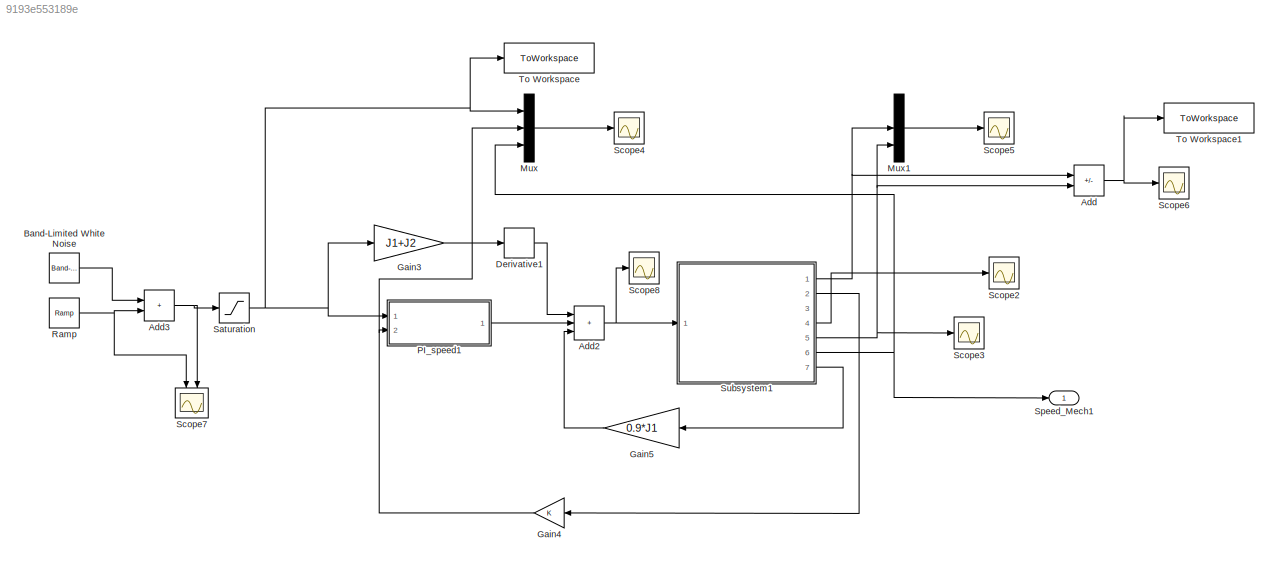
MODEL slx_9193e553189e
KIND model
CONFIG AbsTol = auto
CONFIG EnableMultiTasking = off
CONFIG FixedStep = Ts_10k
CONFIG MaxStep = auto
CONFIG MinStep = auto
CONFIG RelTol = 1e-3
CONFIG SampleTimeConstraint = Unconstrained
CONFIG SolverName = FixedStepAuto
CONFIG StartTime = 0.0
CONFIG StopTime = 10
BLOCK [Sum] Add
  IconShape = rectangular
  Inputs = +-
  Ports = [2, 1]
BLOCK [Sum] Add2
  IconShape = rectangular
  Inputs = +++
  Ports = [3, 1]
BLOCK [Sum] Add3
  IconShape = rectangular
  Ports = [2, 1]
BLOCK [Reference] Band-Limited White Noise  REF=simulink/Sources/Band-Limited
White Noise
  Commented = on
  Ports = [0, 1]
  SourceBlock = simulink/Sources/Band-Limited\nWhite Noise
  SourceProductBaseCode = SL
  SourceType = Band-Limited White Noise.
BLOCK [Derivative] Derivative1
BLOCK [Gain] Gain3
  Gain = J1+J2
BLOCK [Gain] Gain4
BLOCK [Gain] Gain5
  Gain = 0.9*J1
BLOCK [Mux] Mux
  DisplayOption = bar
  Inputs = 3
  Ports = [3, 1]
BLOCK [Mux] Mux1
  DisplayOption = bar
  Inputs = 3
  Ports = [3, 1]
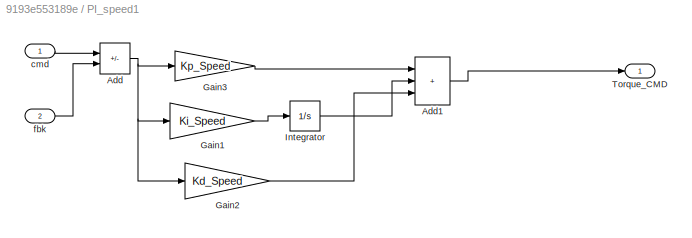
BLOCK [SubSystem] PI_speed1
  Ports = [2, 1]
  RequestExecContextInheritance = off
BLOCK [Sum] PI_speed1/Add
  IconShape = rectangular
  Inputs = +-
  Ports = [2, 1]
BLOCK [Sum] PI_speed1/Add1
  IconShape = rectangular
  Inputs = +++
  Ports = [3, 1]
BLOCK [Gain] PI_speed1/Gain1
  Gain = Ki_Speed
BLOCK [Gain] PI_speed1/Gain2
  Gain = Kd_Speed
BLOCK [Gain] PI_speed1/Gain3
  Gain = Kp_Speed
BLOCK [Integrator] PI_speed1/Integrator
  Ports = [1, 1]
BLOCK [Outport] PI_speed1/Torque_CMD
BLOCK [Inport] PI_speed1/cmd
BLOCK [Inport] PI_speed1/fbk
  Port = 2
BLOCK [Reference] Ramp  REF=simulink/Sources/Ramp
  Ports = [0, 1]
  SourceBlock = simulink/Sources/Ramp
  SourceProductBaseCode = SL
  SourceType = Ramp
BLOCK [Saturate] Saturation
  LowerLimit = -55
  UpperLimit = 41.667
BLOCK [Scope] Scope2
  Floating = off
  NumInputPorts = 1
  Ports = [1]
  ScopeSpecificationString = Simulink.scopes.TimeScopeBlockCfg('CurrentConfiguration', extmgr.ConfigurationSet(extmgr.Configuration('Core','General UI',true),extmgr.Configuration('Core','Source UI',true),extmgr.Configuration('Sources','WiredSimulink',true,'DataLoggingVariableName','ScopeData1'),extmgr.Configuration('Visuals','Time Domain',true,'SerializedDisplays',{struct('MinYLimReal','-25.9788','MaxYLimReal','233.80924','YL...<+1404ch>
BLOCK [Scope] Scope3
  Floating = off
  NumInputPorts = 1
  Ports = [1]
  ScopeSpecificationString = Simulink.scopes.TimeScopeBlockCfg('CurrentConfiguration', extmgr.ConfigurationSet(extmgr.Configuration('Core','General UI',true),extmgr.Configuration('Core','Source UI',true),extmgr.Configuration('Sources','WiredSimulink',true,'DataLoggingVariableName','ScopeData2'),extmgr.Configuration('Visuals','Time Domain',true,'SerializedDisplays',{struct('MinYLimReal','-1.00000','MaxYLimReal','1.00000','YLab...<+1370ch>
BLOCK [Scope] Scope4
  Floating = off
  NumInputPorts = 1
  Ports = [1]
  ScopeSpecificationString = Simulink.scopes.TimeScopeBlockCfg('CurrentConfiguration', extmgr.ConfigurationSet(extmgr.Configuration('Core','General UI',true),extmgr.Configuration('Core','Source UI',true),extmgr.Configuration('Sources','WiredSimulink',true,'DataLoggingVariableName','ScopeData3'),extmgr.Configuration('Visuals','Time Domain',true,'SerializedDisplays',{struct('MinYLimReal','-5.52419','MaxYLimReal','49.71768','YLa...<+1914ch>
BLOCK [Scope] Scope5
  Floating = off
  NumInputPorts = 1
  Ports = [1]
  ScopeSpecificationString = Simulink.scopes.TimeScopeBlockCfg('CurrentConfiguration', extmgr.ConfigurationSet(extmgr.Configuration('Core','General UI',true),extmgr.Configuration('Core','Source UI',true),extmgr.Configuration('Sources','WiredSimulink',true,'DataLoggingVariableName','ScopeData4'),extmgr.Configuration('Visuals','Time Domain',true,'SerializedDisplays',{struct('MinYLimReal','-40.93102','MaxYLimReal','368.37921','Y...<+1581ch>
BLOCK [Scope] Scope6
  Floating = off
  NumInputPorts = 1
  Ports = [1]
  ScopeSpecificationString = Simulink.scopes.TimeScopeBlockCfg('CurrentConfiguration', extmgr.ConfigurationSet(extmgr.Configuration('Core','General UI',true),extmgr.Configuration('Core','Source UI',true),extmgr.Configuration('Sources','WiredSimulink',true,'DataLoggingVariableName','ScopeData5'),extmgr.Configuration('Visuals','Time Domain',true,'SerializedDisplays',{struct('MinYLimReal','-1.1393','MaxYLimReal','2.29011','YLabe...<+1557ch>
BLOCK [Scope] Scope7
  Floating = off
  NameLocation = left
  NumInputPorts = 2
  Ports = [2]
  ScopeSpecificationString = Simulink.scopes.TimeScopeBlockCfg('CurrentConfiguration', extmgr.ConfigurationSet(extmgr.Configuration('Core','General UI',true),extmgr.Configuration('Core','Source UI',true),extmgr.Configuration('Sources','WiredSimulink',true,'DataLoggingVariableName','ScopeData6'),extmgr.Configuration('Visuals','Time Domain',true,'SerializedDisplays',{struct('MinYLimReal','-12.52221','MaxYLimReal','112.69987','Y...<+1405ch>
BLOCK [Scope] Scope8
  Floating = off
  NumInputPorts = 1
  Ports = [1]
  ScopeSpecificationString = Simulink.scopes.TimeScopeBlockCfg('CurrentConfiguration', extmgr.ConfigurationSet(extmgr.Configuration('Core','General UI',true),extmgr.Configuration('Core','Source UI',true),extmgr.Configuration('Sources','WiredSimulink',true,'DataLoggingVariableName','ScopeData7'),extmgr.Configuration('Visuals','Time Domain',true,'SerializedDisplays',{struct('MinYLimReal','-145986.77277','MaxYLimReal','1313880.9...<+1463ch>
BLOCK [Outport] Speed_Mech1
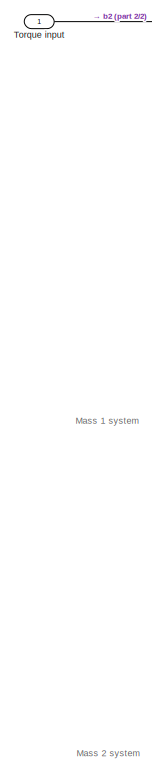
[diagram: Subsystem1 - part 1/2, left side, full height]
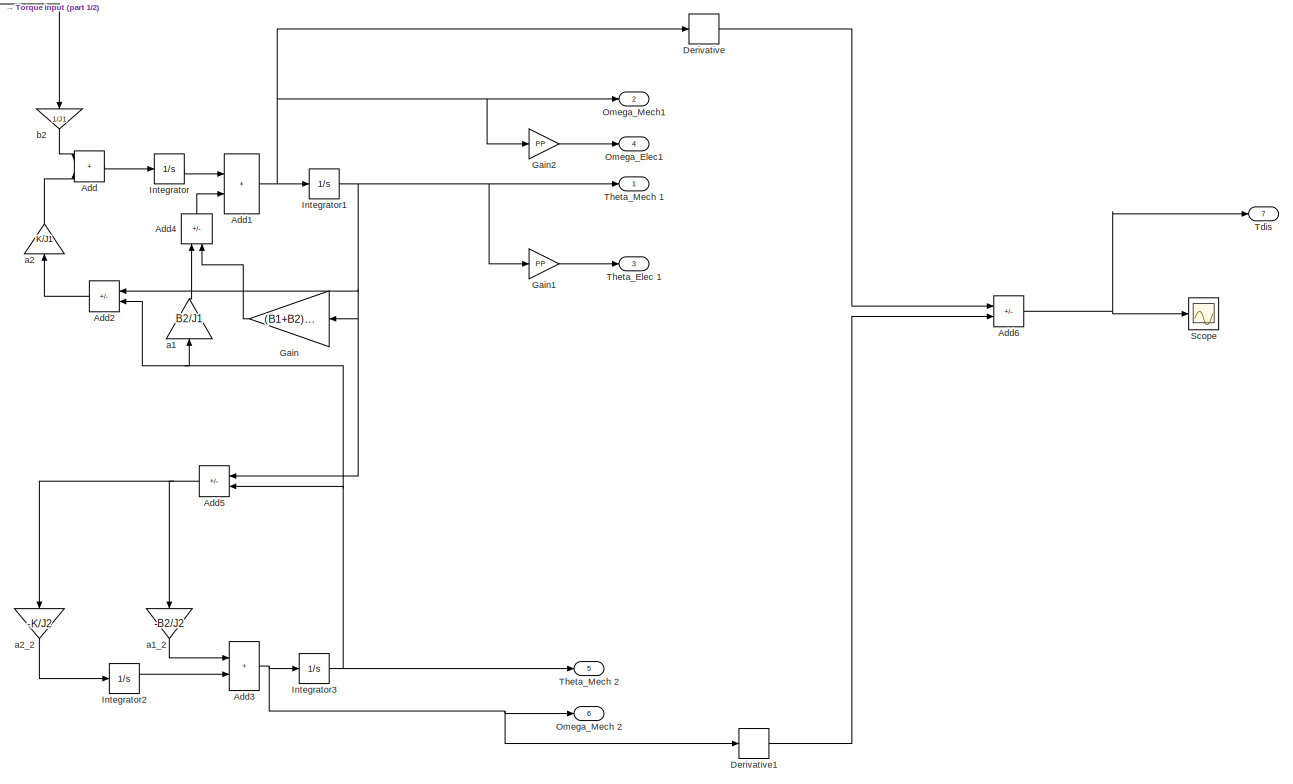
[diagram: Subsystem1 - part 2/2, most of the canvas]
BLOCK [SubSystem] Subsystem1
  Ports = [1, 7]
  RequestExecContextInheritance = off
BLOCK [Sum] Subsystem1/Add
  IconShape = rectangular
  Ports = [2, 1]
BLOCK [Sum] Subsystem1/Add1
  IconShape = rectangular
  Ports = [2, 1]
BLOCK [Sum] Subsystem1/Add2
  IconShape = rectangular
  Inputs = -+
  Ports = [2, 1]
BLOCK [Sum] Subsystem1/Add3
  IconShape = rectangular
  Ports = [2, 1]
BLOCK [Sum] Subsystem1/Add4
  IconShape = rectangular
  Inputs = +-
  NameLocation = left
  Ports = [2, 1]
BLOCK [Sum] Subsystem1/Add5
  IconShape = rectangular
  Inputs = -+
  Ports = [2, 1]
BLOCK [Sum] Subsystem1/Add6
  IconShape = rectangular
  Inputs = +-
  Ports = [2, 1]
BLOCK [Derivative] Subsystem1/Derivative
BLOCK [Derivative] Subsystem1/Derivative1
BLOCK [Gain] Subsystem1/Gain
  Gain = (B1+B2)/J1
BLOCK [Gain] Subsystem1/Gain1
  Gain = PP
BLOCK [Gain] Subsystem1/Gain2
  Gain = PP
BLOCK [Integrator] Subsystem1/Integrator
  Ports = [1, 1]
BLOCK [Integrator] Subsystem1/Integrator1
  Ports = [1, 1]
BLOCK [Integrator] Subsystem1/Integrator2
  Ports = [1, 1]
BLOCK [Integrator] Subsystem1/Integrator3
  Ports = [1, 1]
BLOCK [Outport] Subsystem1/Omega_Elec1
  Port = 4
BLOCK [Outport] Subsystem1/Omega_Mech 2
  Port = 6
BLOCK [Outport] Subsystem1/Omega_Mech1
  Port = 2
BLOCK [Scope] Subsystem1/Scope
  Floating = off
  NumInputPorts = 1
  Ports = [1]
  ScopeSpecificationString = Simulink.scopes.TimeScopeBlockCfg('CurrentConfiguration', extmgr.ConfigurationSet(extmgr.Configuration('Core','General UI',true),extmgr.Configuration('Core','Source UI',true),extmgr.Configuration('Sources','WiredSimulink',true,'DataLoggingVariableName','ScopeData1'),extmgr.Configuration('Visuals','Time Domain',true,'SerializedDisplays',{struct('MinYLimReal','-39948.52104','MaxYLimReal','41515.6166...<+1495ch>
BLOCK [Outport] Subsystem1/Tdis
  Port = 7
BLOCK [Outport] Subsystem1/Theta_Elec 1
  Port = 3
BLOCK [Outport] Subsystem1/Theta_Mech 1
BLOCK [Outport] Subsystem1/Theta_Mech 2
  Port = 5
BLOCK [Inport] Subsystem1/Torque input
BLOCK [Gain] Subsystem1/a1
  Gain = B2/J1
  NameLocation = right
BLOCK [Gain] Subsystem1/a1_2
  Gain = -B2/J2
  NameLocation = right
BLOCK [Gain] Subsystem1/a2
  Gain = K/J1
  NameLocation = right
BLOCK [Gain] Subsystem1/a2_2
  Gain = -K/J2
  NameLocation = right
BLOCK [Gain] Subsystem1/b2
  Gain = 1/J1
  NameLocation = left
BLOCK [ToWorkspace] To Workspace
  FixptAsFi = on
  MaxDataPoints = inf
  Ports = [1]
  SampleTime = -1
  SaveFormat = Timeseries
  VariableName = simout1
BLOCK [ToWorkspace] To Workspace1
  FixptAsFi = on
  MaxDataPoints = inf
  Ports = [1]
  SampleTime = -1
  SaveFormat = Timeseries
  VariableName = relative_distance
ANNOTATION Subsystem1: Mass 1 system
ANNOTATION Subsystem1: Mass 2 system
NET Add2:1 -> Scope8:1, Subsystem1:1
NET Add3:1 -> Saturation:1, Scope7:2
NET Add:1 -> Scope6:1, To Workspace1:1
LINE Band-Limited White Noise:1 -> Add3:1
LINE Derivative1:1 -> Add2:1
LINE Gain3:1 -> Derivative1:1
NET Gain4:1 -> Mux:2, PI_speed1:2
LINE Gain5:1 -> Add2:3
LINE Mux1:1 -> Scope5:1
LINE Mux:1 -> Scope4:1
LINE PI_speed1/Add1:1 -> PI_speed1/Torque_CMD:1
NET PI_speed1/Add:1 -> PI_speed1/Gain1:1, PI_speed1/Gain2:1, PI_speed1/Gain3:1
LINE PI_speed1/Gain1:1 -> PI_speed1/Integrator:1
LINE PI_speed1/Gain2:1 -> PI_speed1/Add1:3
LINE PI_speed1/Gain3:1 -> PI_speed1/Add1:1
LINE PI_speed1/Integrator:1 -> PI_speed1/Add1:2
LINE PI_speed1/cmd:1 -> PI_speed1/Add:1
LINE PI_speed1/fbk:1 -> PI_speed1/Add:2
LINE PI_speed1:1 -> Add2:2
NET Ramp:1 -> Add3:2, Scope7:1
NET Saturation:1 -> Gain3:1, Mux:1, PI_speed1:1, To Workspace:1
NET Subsystem1/Add1:1 -> Subsystem1/Derivative:1, Subsystem1/Gain2:1, Subsystem1/Integrator1:1, Subsystem1/Omega_Mech1:1
LINE Subsystem1/Add2:1 -> Subsystem1/a2:1
NET Subsystem1/Add3:1 -> Subsystem1/Derivative1:1, Subsystem1/Integrator3:1, Subsystem1/Omega_Mech 2:1
LINE Subsystem1/Add4:1 -> Subsystem1/Add1:2
NET Subsystem1/Add5:1 -> Subsystem1/a1_2:1, Subsystem1/a2_2:1
NET Subsystem1/Add6:1 -> Subsystem1/Scope:1, Subsystem1/Tdis:1
LINE Subsystem1/Add:1 -> Subsystem1/Integrator:1
LINE Subsystem1/Derivative1:1 -> Subsystem1/Add6:2
LINE Subsystem1/Derivative:1 -> Subsystem1/Add6:1
LINE Subsystem1/Gain1:1 -> Subsystem1/Theta_Elec 1:1
LINE Subsystem1/Gain2:1 -> Subsystem1/Omega_Elec1:1
LINE Subsystem1/Gain:1 -> Subsystem1/Add4:2
NET Subsystem1/Integrator1:1 -> Subsystem1/Add2:1, Subsystem1/Add5:1, Subsystem1/Gain1:1, Subsystem1/Gain:1, Subsystem1/Theta_Mech 1:1
LINE Subsystem1/Integrator2:1 -> Subsystem1/Add3:2
NET Subsystem1/Integrator3:1 -> Subsystem1/Add2:2, Subsystem1/Add5:2, Subsystem1/Theta_Mech 2:1, Subsystem1/a1:1
LINE Subsystem1/Integrator:1 -> Subsystem1/Add1:1
LINE Subsystem1/Torque input:1 -> Subsystem1/b2:1
LINE Subsystem1/a1:1 -> Subsystem1/Add4:1
LINE Subsystem1/a1_2:1 -> Subsystem1/Add3:1
LINE Subsystem1/a2:1 -> Subsystem1/Add:2
LINE Subsystem1/a2_2:1 -> Subsystem1/Integrator2:1
LINE Subsystem1/b2:1 -> Subsystem1/Add:1
NET Subsystem1:1 -> Add:1, Mux1:2
LINE Subsystem1:2 -> Gain4:1
LINE Subsystem1:4 -> Scope2:1
NET Subsystem1:5 -> Add:2, Mux1:3, Scope3:1
NET Subsystem1:6 -> Mux:3, Speed_Mech1:1
LINE Subsystem1:7 -> Gain5:1
note: NET lines group one-source signal fan-out (src -> all destinations, sorted); 1:1 wires keep LINE
